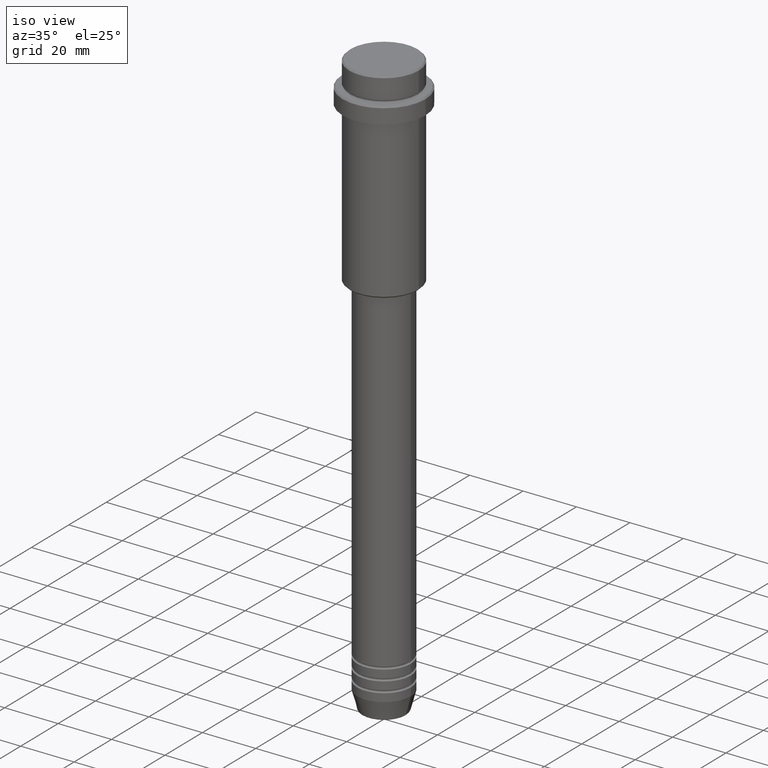
[diagram: clean part render]
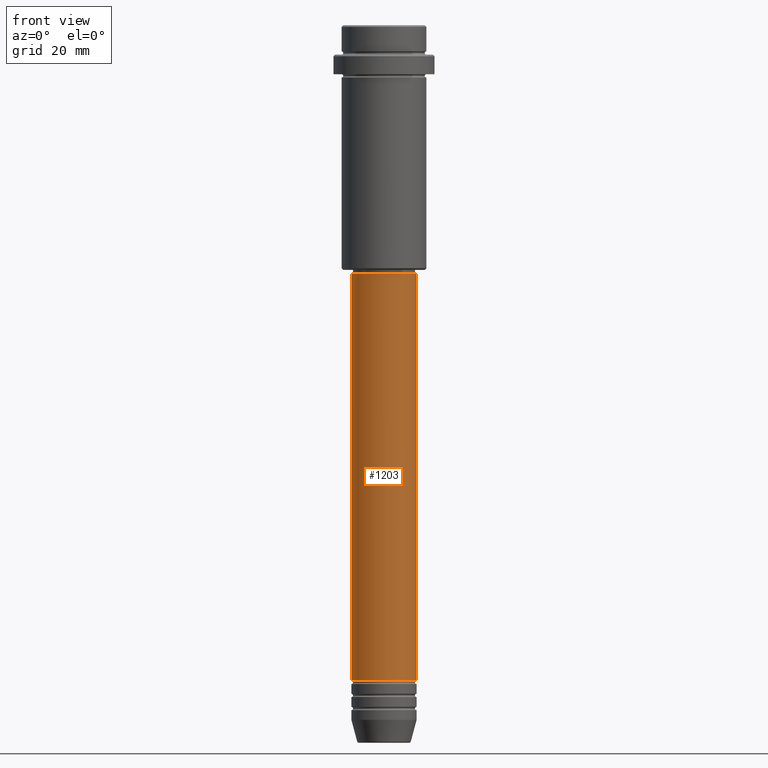
[diagram: tour spotlight — one face highlighted and labeled with its STEP entity id]
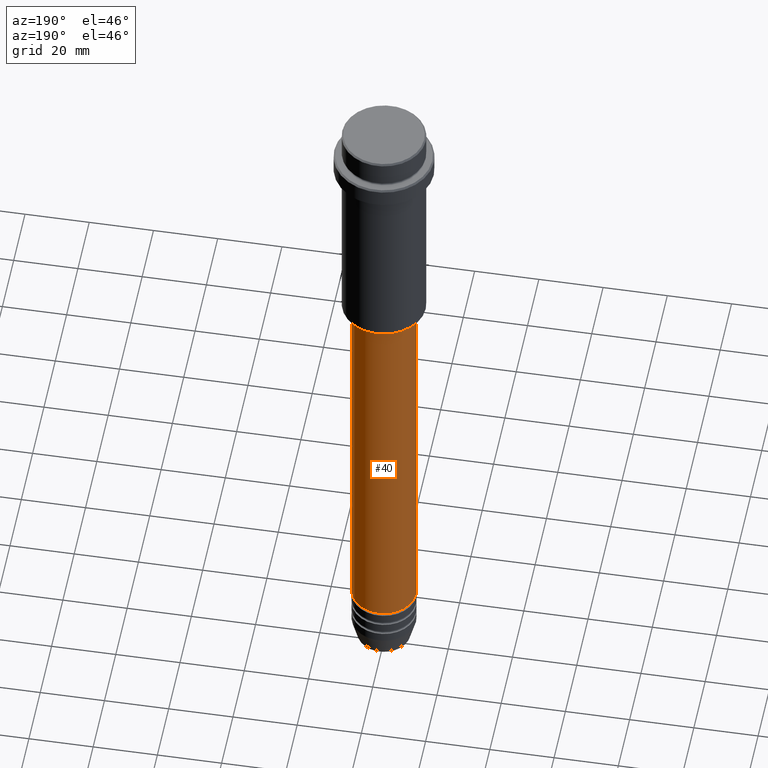
[diagram: tour spotlight — one face highlighted and labeled with its STEP entity id]
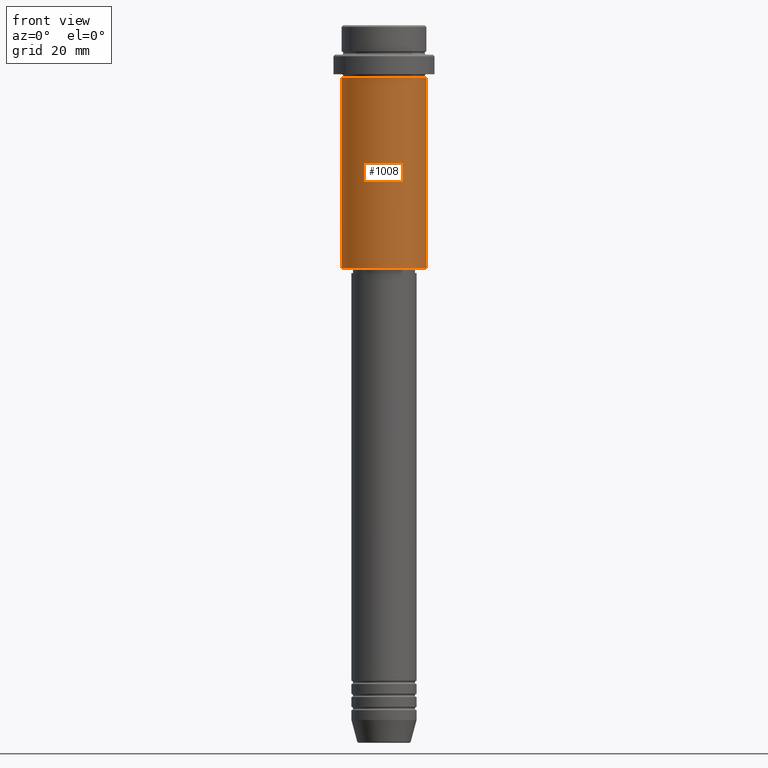
[diagram: tour spotlight — one face highlighted and labeled with its STEP entity id]
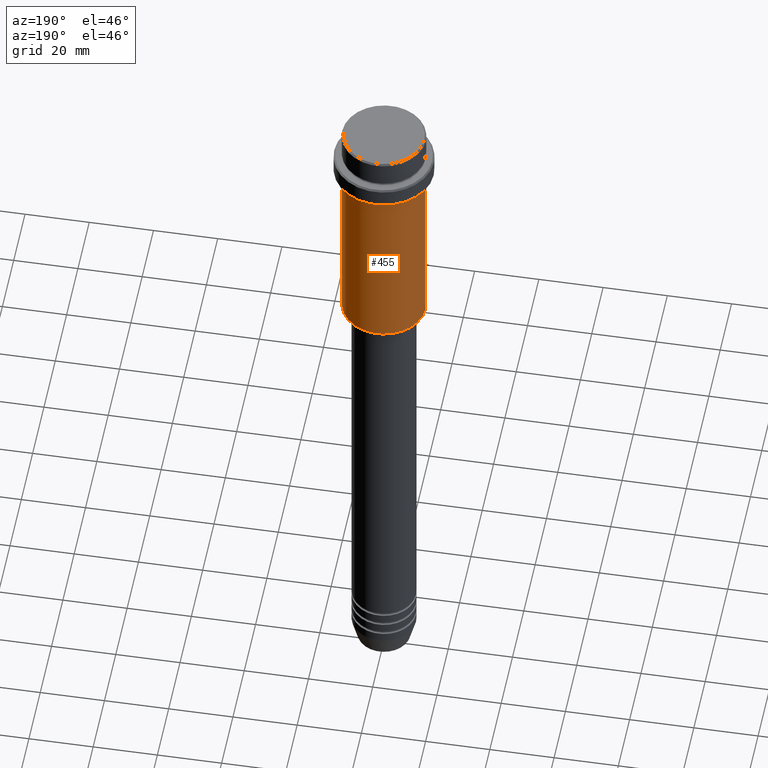
[diagram: tour spotlight — one face highlighted and labeled with its STEP entity id]
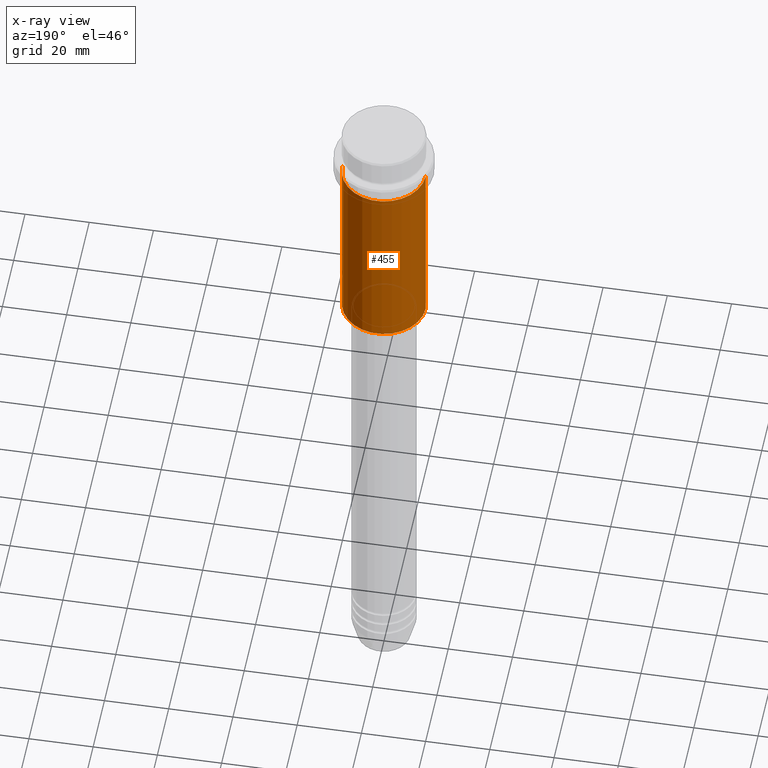
[diagram: x-ray of the same camera — body ghosted, this tour face saturated]
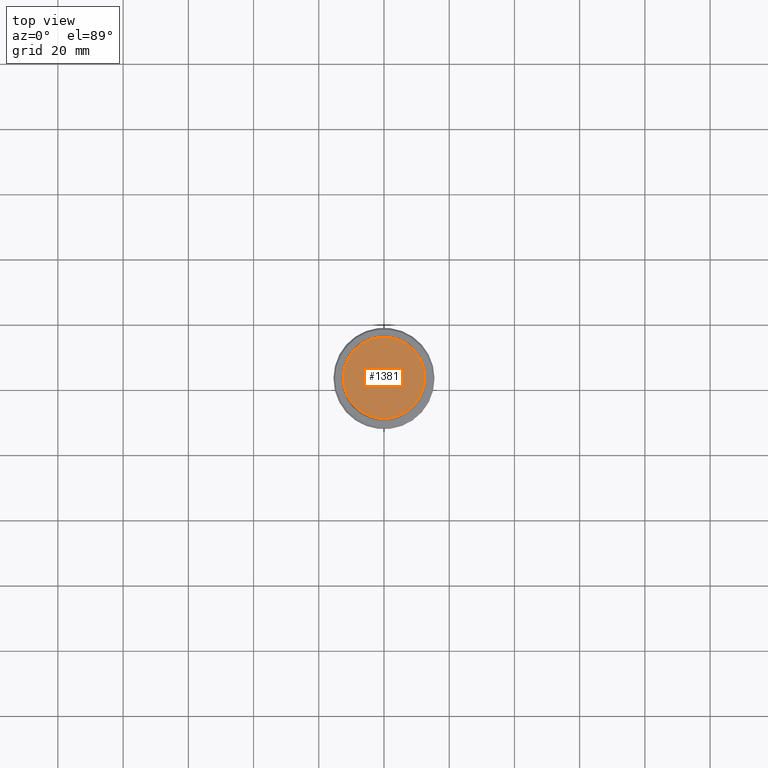
[diagram: tour spotlight — one face highlighted and labeled with its STEP entity id]
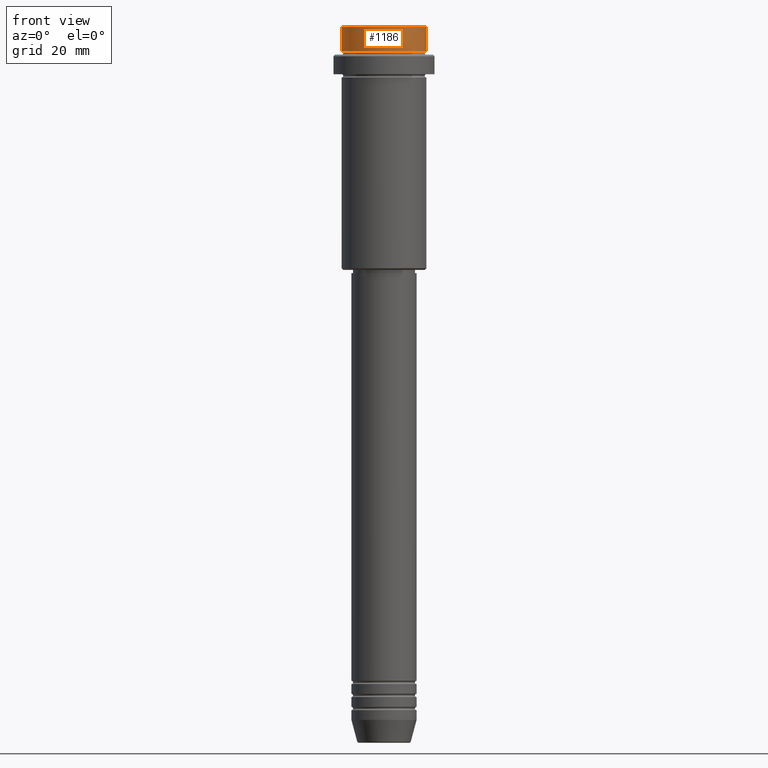
[diagram: tour spotlight — one face highlighted and labeled with its STEP entity id]
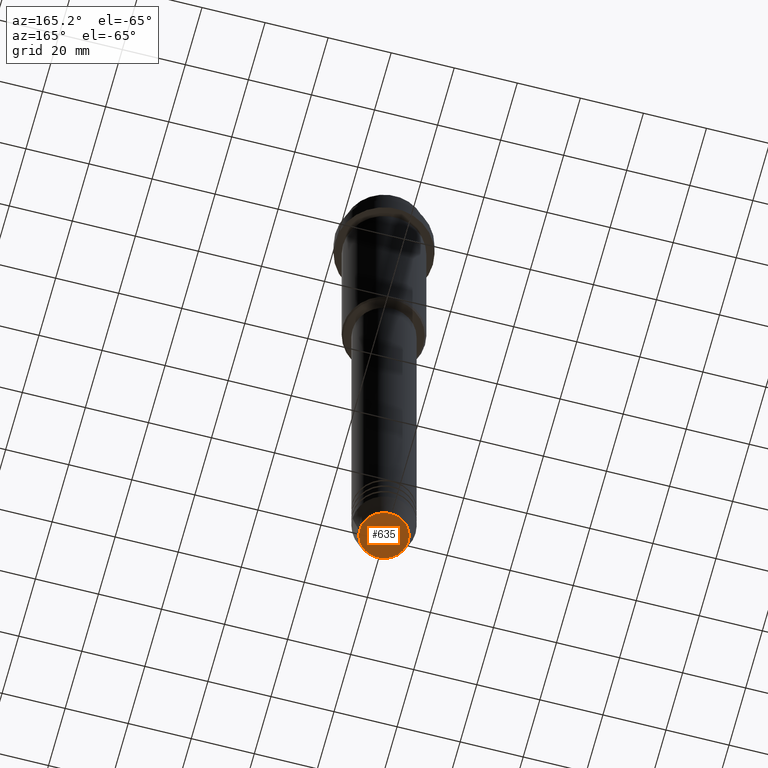
[diagram: tour spotlight — one face highlighted and labeled with its STEP entity id]
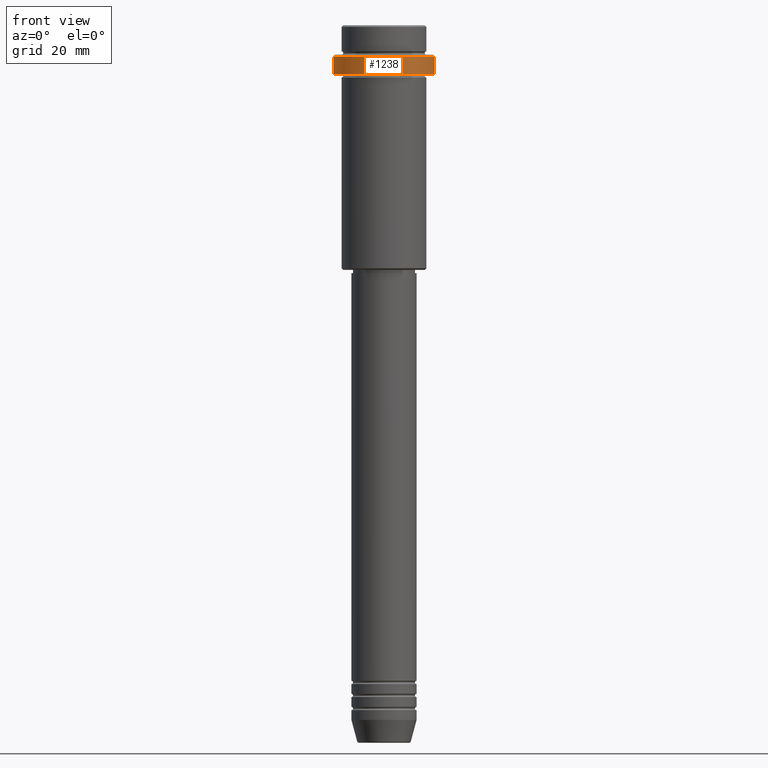
[diagram: tour spotlight — one face highlighted and labeled with its STEP entity id]
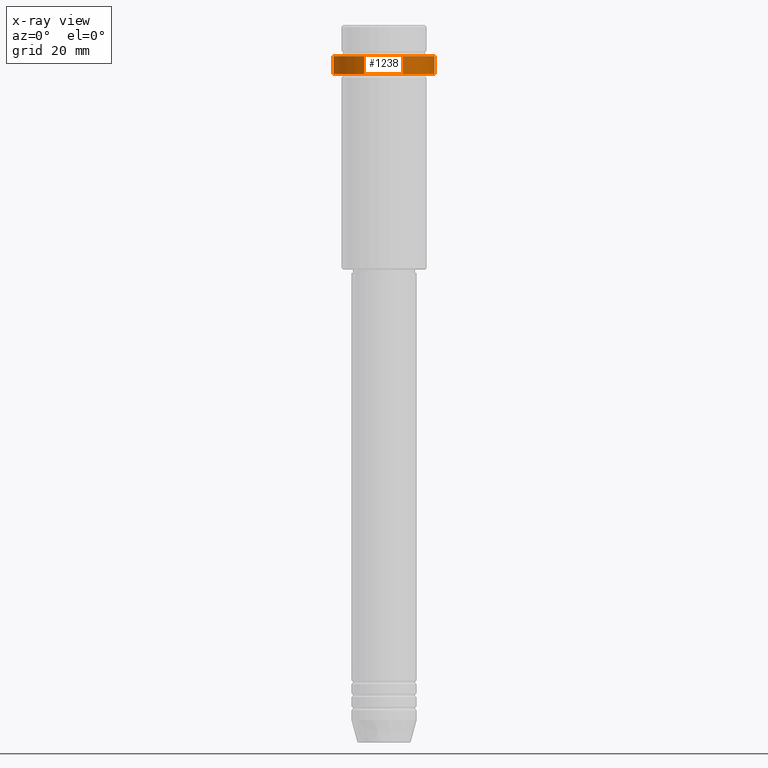
[diagram: x-ray of the same camera — body ghosted, this tour face saturated]
A machine part: a face-by-face anatomy tour. The part has 52 B-rep faces; the first image is the clean iso view, then the 8 largest visible faces are spotlighted one at a time (largest first), each with its STEP entity span.

Face 1 — front view, entity #1203. In plain terms, the highlighted cylindrical surface (edge-blend (fillet) strip) has radius 10 mm, axis along (-0, -0, 1).
Definition (entity closure, byte-faithful):
#1 = VERTEX_POINT ( 'NONE', #1125 ) ;
#70 = EDGE_CURVE ( 'NONE', #1123, #1194, #781, .T. ) ;
#89 = ORIENTED_EDGE ( 'NONE', *, *, #380, .F. ) ;
#114 = CARTESIAN_POINT ( 'NONE',  ( -10.00000000000000178, 1.224646799147353454E-15, 0.000000000000000000 ) ) ;
#206 = CARTESIAN_POINT ( 'NONE',  ( -10.00000000000000000, 1.224646799147353256E-15, -200.9999999999998579 ) ) ;
#218 = DIRECTION ( 'NONE',  ( -0.000000000000000000, -0.000000000000000000, 1.000000000000000000 ) ) ;
#263 = ORIENTED_EDGE ( 'NONE', *, *, #705, .T. ) ;
#276 = CARTESIAN_POINT ( 'NONE',  ( 0.000000000000000000, 0.000000000000000000, 0.000000000000000000 ) ) ;
#292 = LINE ( 'NONE', #114, #372 ) ;
#334 = CIRCLE ( 'NONE', #1176, 10.00000000000000178 ) ;
#339 = ORIENTED_EDGE ( 'NONE', *, *, #70, .T. ) ;
#372 = VECTOR ( 'NONE', #785, 1000.000000000000000 ) ;
#380 = EDGE_CURVE ( 'NONE', #1123, #1, #292, .T. ) ;
#422 = AXIS2_PLACEMENT_3D ( 'NONE', #276, #1293, #731 ) ;
#426 = DIRECTION ( 'NONE',  ( 1.000000000000000000, 0.000000000000000000, 0.000000000000000000 ) ) ;
#433 = VERTEX_POINT ( 'NONE', #523 ) ;
#523 = CARTESIAN_POINT ( 'NONE',  ( 10.00000000000000178, 0.000000000000000000, -75.99999999999998579 ) ) ;
#563 = AXIS2_PLACEMENT_3D ( 'NONE', #1124, #1307, #1205 ) ;
#705 = EDGE_CURVE ( 'NONE', #1194, #433, #976, .T. ) ;
#731 = DIRECTION ( 'NONE',  ( 1.000000000000000000, 0.000000000000000000, 0.000000000000000000 ) ) ;
#781 = CIRCLE ( 'NONE', #563, 10.00000000000000000 ) ;
#785 = DIRECTION ( 'NONE',  ( -0.000000000000000000, -0.000000000000000000, 1.000000000000000000 ) ) ;
#844 = FACE_OUTER_BOUND ( 'NONE', #1030, .T. ) ;
#927 = VECTOR ( 'NONE', #1376, 1000.000000000000000 ) ;
#976 = LINE ( 'NONE', #1277, #927 ) ;
#1030 = EDGE_LOOP ( 'NONE', ( #89, #339, #263, #1385 ) ) ;
#1123 = VERTEX_POINT ( 'NONE', #206 ) ;
#1124 = CARTESIAN_POINT ( 'NONE',  ( 0.000000000000000000, 0.000000000000000000, -200.9999999999998579 ) ) ;
#1125 = CARTESIAN_POINT ( 'NONE',  ( -10.00000000000000178, 1.224646799147353454E-15, -75.99999999999998579 ) ) ;
#1176 = AXIS2_PLACEMENT_3D ( 'NONE', #1206, #218, #426 ) ;
#1187 = CYLINDRICAL_SURFACE ( 'NONE', #422, 10.00000000000000178 ) ;
#1194 = VERTEX_POINT ( 'NONE', #1288 ) ;
#1203 = ADVANCED_FACE ( 'NONE', ( #844 ), #1187, .T. ) ;
#1205 = DIRECTION ( 'NONE',  ( 1.000000000000000000, 0.000000000000000000, 0.000000000000000000 ) ) ;
#1206 = CARTESIAN_POINT ( 'NONE',  ( 0.000000000000000000, 0.000000000000000000, -75.99999999999998579 ) ) ;
#1245 = EDGE_CURVE ( 'NONE', #1, #433, #334, .T. ) ;
#1277 = CARTESIAN_POINT ( 'NONE',  ( 10.00000000000000178, 0.000000000000000000, 0.000000000000000000 ) ) ;
#1288 = CARTESIAN_POINT ( 'NONE',  ( 10.00000000000000000, 0.000000000000000000, -200.9999999999998579 ) ) ;
#1293 = DIRECTION ( 'NONE',  ( -0.000000000000000000, -0.000000000000000000, 1.000000000000000000 ) ) ;
#1307 = DIRECTION ( 'NONE',  ( -0.000000000000000000, -0.000000000000000000, 1.000000000000000000 ) ) ;
#1376 = DIRECTION ( 'NONE',  ( -0.000000000000000000, -0.000000000000000000, 1.000000000000000000 ) ) ;
#1385 = ORIENTED_EDGE ( 'NONE', *, *, #1245, .F. ) ;

Face 2 — auxiliary view, entity #40. In plain terms, the highlighted cylindrical surface (edge-blend (fillet) strip) has radius 10 mm, axis along (-0, -0, 1).
Definition (entity closure, byte-faithful):
#1 = VERTEX_POINT ( 'NONE', #1125 ) ;
#5 = ORIENTED_EDGE ( 'NONE', *, *, #380, .T. ) ;
#35 = CARTESIAN_POINT ( 'NONE',  ( 0.000000000000000000, 0.000000000000000000, 0.000000000000000000 ) ) ;
#40 = ADVANCED_FACE ( 'NONE', ( #246 ), #939, .T. ) ;
#93 = ORIENTED_EDGE ( 'NONE', *, *, #705, .F. ) ;
#114 = CARTESIAN_POINT ( 'NONE',  ( -10.00000000000000178, 1.224646799147353454E-15, 0.000000000000000000 ) ) ;
#206 = CARTESIAN_POINT ( 'NONE',  ( -10.00000000000000000, 1.224646799147353256E-15, -200.9999999999998579 ) ) ;
#239 = CIRCLE ( 'NONE', #612, 10.00000000000000000 ) ;
#246 = FACE_OUTER_BOUND ( 'NONE', #495, .T. ) ;
#271 = ORIENTED_EDGE ( 'NONE', *, *, #868, .T. ) ;
#292 = LINE ( 'NONE', #114, #372 ) ;
#335 = ORIENTED_EDGE ( 'NONE', *, *, #1089, .F. ) ;
#372 = VECTOR ( 'NONE', #785, 1000.000000000000000 ) ;
#380 = EDGE_CURVE ( 'NONE', #1123, #1, #292, .T. ) ;
#433 = VERTEX_POINT ( 'NONE', #523 ) ;
#495 = EDGE_LOOP ( 'NONE', ( #271, #5, #335, #93 ) ) ;
#523 = CARTESIAN_POINT ( 'NONE',  ( 10.00000000000000178, 0.000000000000000000, -75.99999999999998579 ) ) ;
#589 = DIRECTION ( 'NONE',  ( -0.000000000000000000, -0.000000000000000000, 1.000000000000000000 ) ) ;
#612 = AXIS2_PLACEMENT_3D ( 'NONE', #1021, #1101, #989 ) ;
#699 = CARTESIAN_POINT ( 'NONE',  ( 0.000000000000000000, 0.000000000000000000, -75.99999999999998579 ) ) ;
#705 = EDGE_CURVE ( 'NONE', #1194, #433, #976, .T. ) ;
#734 = AXIS2_PLACEMENT_3D ( 'NONE', #699, #1148, #824 ) ;
#785 = DIRECTION ( 'NONE',  ( -0.000000000000000000, -0.000000000000000000, 1.000000000000000000 ) ) ;
#824 = DIRECTION ( 'NONE',  ( 1.000000000000000000, 0.000000000000000000, 0.000000000000000000 ) ) ;
#831 = CIRCLE ( 'NONE', #734, 10.00000000000000178 ) ;
#868 = EDGE_CURVE ( 'NONE', #1194, #1123, #239, .T. ) ;
#927 = VECTOR ( 'NONE', #1376, 1000.000000000000000 ) ;
#939 = CYLINDRICAL_SURFACE ( 'NONE', #1060, 10.00000000000000178 ) ;
#976 = LINE ( 'NONE', #1277, #927 ) ;
#989 = DIRECTION ( 'NONE',  ( 1.000000000000000000, 0.000000000000000000, 0.000000000000000000 ) ) ;
#1021 = CARTESIAN_POINT ( 'NONE',  ( 0.000000000000000000, 0.000000000000000000, -200.9999999999998579 ) ) ;
#1060 = AXIS2_PLACEMENT_3D ( 'NONE', #35, #589, #1155 ) ;
#1089 = EDGE_CURVE ( 'NONE', #433, #1, #831, .T. ) ;
#1101 = DIRECTION ( 'NONE',  ( -0.000000000000000000, -0.000000000000000000, 1.000000000000000000 ) ) ;
#1123 = VERTEX_POINT ( 'NONE', #206 ) ;
#1125 = CARTESIAN_POINT ( 'NONE',  ( -10.00000000000000178, 1.224646799147353454E-15, -75.99999999999998579 ) ) ;
#1148 = DIRECTION ( 'NONE',  ( -0.000000000000000000, -0.000000000000000000, 1.000000000000000000 ) ) ;
#1155 = DIRECTION ( 'NONE',  ( 1.000000000000000000, 0.000000000000000000, 0.000000000000000000 ) ) ;
#1194 = VERTEX_POINT ( 'NONE', #1288 ) ;
#1277 = CARTESIAN_POINT ( 'NONE',  ( 10.00000000000000178, 0.000000000000000000, 0.000000000000000000 ) ) ;
#1288 = CARTESIAN_POINT ( 'NONE',  ( 10.00000000000000000, 0.000000000000000000, -200.9999999999998579 ) ) ;
#1376 = DIRECTION ( 'NONE',  ( -0.000000000000000000, -0.000000000000000000, 1.000000000000000000 ) ) ;

Face 3 — front view, entity #1008. In plain terms, the highlighted cylindrical surface (partial cylindrical patch) has radius 13 mm, axis along (-0, -0, 1).
Definition (entity closure, byte-faithful):
#24 = DIRECTION ( 'NONE',  ( 1.000000000000000000, 0.000000000000000000, 0.000000000000000000 ) ) ;
#51 = DIRECTION ( 'NONE',  ( 1.000000000000000000, 0.000000000000000000, 0.000000000000000000 ) ) ;
#157 = EDGE_CURVE ( 'NONE', #568, #526, #1297, .T. ) ;
#325 = ORIENTED_EDGE ( 'NONE', *, *, #157, .T. ) ;
#341 = CARTESIAN_POINT ( 'NONE',  ( -13.00000000000000000, 1.592040838891559095E-15, -16.00000000000000000 ) ) ;
#343 = CARTESIAN_POINT ( 'NONE',  ( 0.000000000000000000, 0.000000000000000000, -16.00000000000000000 ) ) ;
#354 = AXIS2_PLACEMENT_3D ( 'NONE', #573, #1231, #918 ) ;
#420 = AXIS2_PLACEMENT_3D ( 'NONE', #461, #1157, #51 ) ;
#461 = CARTESIAN_POINT ( 'NONE',  ( 0.000000000000000000, 0.000000000000000000, 0.000000000000000000 ) ) ;
#479 = EDGE_CURVE ( 'NONE', #526, #743, #1379, .T. ) ;
#485 = CARTESIAN_POINT ( 'NONE',  ( 13.00000000000000000, 0.000000000000000000, -74.50000000000001421 ) ) ;
#491 = VECTOR ( 'NONE', #648, 1000.000000000000000 ) ;
#505 = CARTESIAN_POINT ( 'NONE',  ( -13.00000000000000000, 1.592040838891559095E-15, -74.50000000000001421 ) ) ;
#524 = VERTEX_POINT ( 'NONE', #341 ) ;
#526 = VERTEX_POINT ( 'NONE', #485 ) ;
#536 = DIRECTION ( 'NONE',  ( -0.000000000000000000, -0.000000000000000000, 1.000000000000000000 ) ) ;
#568 = VERTEX_POINT ( 'NONE', #505 ) ;
#573 = CARTESIAN_POINT ( 'NONE',  ( 0.000000000000000000, 0.000000000000000000, -74.50000000000001421 ) ) ;
#640 = CIRCLE ( 'NONE', #1134, 13.00000000000000000 ) ;
#648 = DIRECTION ( 'NONE',  ( -0.000000000000000000, -0.000000000000000000, 1.000000000000000000 ) ) ;
#685 = ORIENTED_EDGE ( 'NONE', *, *, #1300, .F. ) ;
#709 = ORIENTED_EDGE ( 'NONE', *, *, #479, .T. ) ;
#743 = VERTEX_POINT ( 'NONE', #1165 ) ;
#745 = LINE ( 'NONE', #1200, #491 ) ;
#793 = CARTESIAN_POINT ( 'NONE',  ( 13.00000000000000000, 0.000000000000000000, 0.000000000000000000 ) ) ;
#805 = DIRECTION ( 'NONE',  ( -0.000000000000000000, -0.000000000000000000, 1.000000000000000000 ) ) ;
#918 = DIRECTION ( 'NONE',  ( -1.000000000000000000, 0.000000000000000000, 0.000000000000000000 ) ) ;
#1008 = ADVANCED_FACE ( 'NONE', ( #1057 ), #1049, .T. ) ;
#1022 = EDGE_LOOP ( 'NONE', ( #1043, #325, #709, #685 ) ) ;
#1043 = ORIENTED_EDGE ( 'NONE', *, *, #1195, .F. ) ;
#1049 = CYLINDRICAL_SURFACE ( 'NONE', #420, 13.00000000000000000 ) ;
#1057 = FACE_OUTER_BOUND ( 'NONE', #1022, .T. ) ;
#1134 = AXIS2_PLACEMENT_3D ( 'NONE', #343, #536, #24 ) ;
#1157 = DIRECTION ( 'NONE',  ( -0.000000000000000000, -0.000000000000000000, 1.000000000000000000 ) ) ;
#1165 = CARTESIAN_POINT ( 'NONE',  ( 13.00000000000000000, 0.000000000000000000, -16.00000000000000000 ) ) ;
#1195 = EDGE_CURVE ( 'NONE', #568, #524, #745, .T. ) ;
#1200 = CARTESIAN_POINT ( 'NONE',  ( -13.00000000000000000, 1.592040838891559095E-15, 0.000000000000000000 ) ) ;
#1231 = DIRECTION ( 'NONE',  ( -0.000000000000000000, -0.000000000000000000, 1.000000000000000000 ) ) ;
#1297 = CIRCLE ( 'NONE', #354, 13.00000000000000000 ) ;
#1300 = EDGE_CURVE ( 'NONE', #524, #743, #640, .T. ) ;
#1319 = VECTOR ( 'NONE', #805, 1000.000000000000000 ) ;
#1379 = LINE ( 'NONE', #793, #1319 ) ;

Face 4 — auxiliary view, entity #455. An x-ray twin of the same camera follows (body ghosted, this face saturated) — the face is partly hidden behind the body. In plain terms, the highlighted cylindrical surface (partial cylindrical patch) has radius 13 mm, axis along (-0, -0, 1).
Definition (entity closure, byte-faithful):
#47 = DIRECTION ( 'NONE',  ( 1.000000000000000000, 0.000000000000000000, 0.000000000000000000 ) ) ;
#146 = CARTESIAN_POINT ( 'NONE',  ( 0.000000000000000000, 0.000000000000000000, 0.000000000000000000 ) ) ;
#158 = DIRECTION ( 'NONE',  ( -0.000000000000000000, -0.000000000000000000, 1.000000000000000000 ) ) ;
#179 = DIRECTION ( 'NONE',  ( -0.000000000000000000, -0.000000000000000000, 1.000000000000000000 ) ) ;
#300 = ORIENTED_EDGE ( 'NONE', *, *, #345, .F. ) ;
#323 = CARTESIAN_POINT ( 'NONE',  ( 0.000000000000000000, 0.000000000000000000, -16.00000000000000000 ) ) ;
#341 = CARTESIAN_POINT ( 'NONE',  ( -13.00000000000000000, 1.592040838891559095E-15, -16.00000000000000000 ) ) ;
#345 = EDGE_CURVE ( 'NONE', #743, #524, #1112, .T. ) ;
#455 = ADVANCED_FACE ( 'NONE', ( #649 ), #1248, .T. ) ;
#479 = EDGE_CURVE ( 'NONE', #526, #743, #1379, .T. ) ;
#485 = CARTESIAN_POINT ( 'NONE',  ( 13.00000000000000000, 0.000000000000000000, -74.50000000000001421 ) ) ;
#488 = CIRCLE ( 'NONE', #683, 13.00000000000000000 ) ;
#491 = VECTOR ( 'NONE', #648, 1000.000000000000000 ) ;
#505 = CARTESIAN_POINT ( 'NONE',  ( -13.00000000000000000, 1.592040838891559095E-15, -74.50000000000001421 ) ) ;
#524 = VERTEX_POINT ( 'NONE', #341 ) ;
#526 = VERTEX_POINT ( 'NONE', #485 ) ;
#568 = VERTEX_POINT ( 'NONE', #505 ) ;
#648 = DIRECTION ( 'NONE',  ( -0.000000000000000000, -0.000000000000000000, 1.000000000000000000 ) ) ;
#649 = FACE_OUTER_BOUND ( 'NONE', #845, .T. ) ;
#670 = ORIENTED_EDGE ( 'NONE', *, *, #792, .T. ) ;
#683 = AXIS2_PLACEMENT_3D ( 'NONE', #1408, #1234, #1135 ) ;
#743 = VERTEX_POINT ( 'NONE', #1165 ) ;
#745 = LINE ( 'NONE', #1200, #491 ) ;
#792 = EDGE_CURVE ( 'NONE', #526, #568, #488, .T. ) ;
#793 = CARTESIAN_POINT ( 'NONE',  ( 13.00000000000000000, 0.000000000000000000, 0.000000000000000000 ) ) ;
#805 = DIRECTION ( 'NONE',  ( -0.000000000000000000, -0.000000000000000000, 1.000000000000000000 ) ) ;
#828 = AXIS2_PLACEMENT_3D ( 'NONE', #323, #179, #1073 ) ;
#845 = EDGE_LOOP ( 'NONE', ( #670, #966, #300, #931 ) ) ;
#931 = ORIENTED_EDGE ( 'NONE', *, *, #479, .F. ) ;
#966 = ORIENTED_EDGE ( 'NONE', *, *, #1195, .T. ) ;
#970 = AXIS2_PLACEMENT_3D ( 'NONE', #146, #158, #47 ) ;
#1073 = DIRECTION ( 'NONE',  ( 1.000000000000000000, 0.000000000000000000, 0.000000000000000000 ) ) ;
#1112 = CIRCLE ( 'NONE', #828, 13.00000000000000000 ) ;
#1135 = DIRECTION ( 'NONE',  ( -1.000000000000000000, 0.000000000000000000, 0.000000000000000000 ) ) ;
#1165 = CARTESIAN_POINT ( 'NONE',  ( 13.00000000000000000, 0.000000000000000000, -16.00000000000000000 ) ) ;
#1195 = EDGE_CURVE ( 'NONE', #568, #524, #745, .T. ) ;
#1200 = CARTESIAN_POINT ( 'NONE',  ( -13.00000000000000000, 1.592040838891559095E-15, 0.000000000000000000 ) ) ;
#1234 = DIRECTION ( 'NONE',  ( -0.000000000000000000, -0.000000000000000000, 1.000000000000000000 ) ) ;
#1248 = CYLINDRICAL_SURFACE ( 'NONE', #970, 13.00000000000000000 ) ;
#1319 = VECTOR ( 'NONE', #805, 1000.000000000000000 ) ;
#1379 = LINE ( 'NONE', #793, #1319 ) ;
#1408 = CARTESIAN_POINT ( 'NONE',  ( 0.000000000000000000, 0.000000000000000000, -74.50000000000001421 ) ) ;

Face 5 — top view, entity #1381. In plain terms, the highlighted planar face has unit normal (0, -0, 1).
Definition (entity closure, byte-faithful):
#107 = DIRECTION ( 'NONE',  ( 0.000000000000000000, -0.000000000000000000, 1.000000000000000000 ) ) ;
#118 = EDGE_CURVE ( 'NONE', #1142, #1251, #1387, .T. ) ;
#124 = DIRECTION ( 'NONE',  ( 1.000000000000000000, 0.000000000000000000, 0.000000000000000000 ) ) ;
#134 = AXIS2_PLACEMENT_3D ( 'NONE', #897, #107, #331 ) ;
#331 = DIRECTION ( 'NONE',  ( 1.000000000000000000, 0.000000000000000000, 0.000000000000000000 ) ) ;
#432 = FACE_OUTER_BOUND ( 'NONE', #1108, .T. ) ;
#448 = ORIENTED_EDGE ( 'NONE', *, *, #471, .T. ) ;
#471 = EDGE_CURVE ( 'NONE', #1251, #1142, #758, .T. ) ;
#512 = AXIS2_PLACEMENT_3D ( 'NONE', #761, #1223, #124 ) ;
#653 = CARTESIAN_POINT ( 'NONE',  ( 0.000000000000000000, 0.000000000000000000, 0.000000000000000000 ) ) ;
#655 = PLANE ( 'NONE',  #134 ) ;
#752 = CARTESIAN_POINT ( 'NONE',  ( 12.50000000000001243, 1.561424668912876097E-15, 0.000000000000000000 ) ) ;
#758 = CIRCLE ( 'NONE', #512, 12.50000000000001243 ) ;
#761 = CARTESIAN_POINT ( 'NONE',  ( 0.000000000000000000, 0.000000000000000000, 0.000000000000000000 ) ) ;
#803 = ORIENTED_EDGE ( 'NONE', *, *, #118, .T. ) ;
#897 = CARTESIAN_POINT ( 'NONE',  ( 0.000000000000000000, 0.000000000000000000, 0.000000000000000000 ) ) ;
#943 = AXIS2_PLACEMENT_3D ( 'NONE', #653, #1399, #1313 ) ;
#1108 = EDGE_LOOP ( 'NONE', ( #448, #803 ) ) ;
#1122 = CARTESIAN_POINT ( 'NONE',  ( -12.50000000000001243, 0.000000000000000000, 0.000000000000000000 ) ) ;
#1142 = VERTEX_POINT ( 'NONE', #752 ) ;
#1223 = DIRECTION ( 'NONE',  ( -0.000000000000000000, -0.000000000000000000, 1.000000000000000000 ) ) ;
#1251 = VERTEX_POINT ( 'NONE', #1122 ) ;
#1313 = DIRECTION ( 'NONE',  ( 1.000000000000000000, 0.000000000000000000, 0.000000000000000000 ) ) ;
#1381 = ADVANCED_FACE ( 'NONE', ( #432 ), #655, .T. ) ;
#1387 = CIRCLE ( 'NONE', #943, 12.50000000000001243 ) ;
#1399 = DIRECTION ( 'NONE',  ( -0.000000000000000000, -0.000000000000000000, 1.000000000000000000 ) ) ;

Face 6 — front view, entity #1186. In plain terms, the highlighted cylindrical surface (partial cylindrical patch) has radius 13 mm, axis along (-0, -0, 1).
Definition (entity closure, byte-faithful):
#57 = CARTESIAN_POINT ( 'NONE',  ( 0.000000000000000000, 0.000000000000000000, -0.4999999999999761302 ) ) ;
#116 = EDGE_CURVE ( 'NONE', #427, #314, #978, .T. ) ;
#128 = VECTOR ( 'NONE', #409, 1000.000000000000000 ) ;
#261 = DIRECTION ( 'NONE',  ( -0.000000000000000000, -0.000000000000000000, 1.000000000000000000 ) ) ;
#291 = EDGE_LOOP ( 'NONE', ( #480, #572, #1182, #1285 ) ) ;
#297 = LINE ( 'NONE', #1197, #710 ) ;
#314 = VERTEX_POINT ( 'NONE', #740 ) ;
#333 = CIRCLE ( 'NONE', #903, 12.99999999999999822 ) ;
#340 = CARTESIAN_POINT ( 'NONE',  ( -12.99999999999999822, 1.592040838891558898E-15, -0.4999999999999761302 ) ) ;
#409 = DIRECTION ( 'NONE',  ( -0.000000000000000000, -0.000000000000000000, 1.000000000000000000 ) ) ;
#410 = DIRECTION ( 'NONE',  ( 1.000000000000000000, 0.000000000000000000, 0.000000000000000000 ) ) ;
#427 = VERTEX_POINT ( 'NONE', #864 ) ;
#480 = ORIENTED_EDGE ( 'NONE', *, *, #827, .F. ) ;
#483 = DIRECTION ( 'NONE',  ( 0.000000000000000000, 0.000000000000000000, -1.000000000000000000 ) ) ;
#509 = FACE_OUTER_BOUND ( 'NONE', #291, .T. ) ;
#514 = DIRECTION ( 'NONE',  ( 1.000000000000000000, 0.000000000000000000, 0.000000000000000000 ) ) ;
#521 = CYLINDRICAL_SURFACE ( 'NONE', #1364, 12.99999999999999822 ) ;
#572 = ORIENTED_EDGE ( 'NONE', *, *, #698, .T. ) ;
#660 = AXIS2_PLACEMENT_3D ( 'NONE', #1386, #261, #514 ) ;
#698 = EDGE_CURVE ( 'NONE', #1102, #427, #1237, .T. ) ;
#710 = VECTOR ( 'NONE', #767, 1000.000000000000000 ) ;
#740 = CARTESIAN_POINT ( 'NONE',  ( 12.99999999999999822, 0.000000000000000000, -0.4999999999999761302 ) ) ;
#767 = DIRECTION ( 'NONE',  ( -0.000000000000000000, -0.000000000000000000, 1.000000000000000000 ) ) ;
#827 = EDGE_CURVE ( 'NONE', #1102, #898, #297, .T. ) ;
#864 = CARTESIAN_POINT ( 'NONE',  ( 12.99999999999999822, 0.000000000000000000, -7.999999999999998224 ) ) ;
#898 = VERTEX_POINT ( 'NONE', #340 ) ;
#903 = AXIS2_PLACEMENT_3D ( 'NONE', #57, #483, #1257 ) ;
#969 = CARTESIAN_POINT ( 'NONE',  ( 0.000000000000000000, 0.000000000000000000, 0.000000000000000000 ) ) ;
#978 = LINE ( 'NONE', #1404, #128 ) ;
#987 = DIRECTION ( 'NONE',  ( -0.000000000000000000, -0.000000000000000000, 1.000000000000000000 ) ) ;
#1027 = EDGE_CURVE ( 'NONE', #314, #898, #333, .T. ) ;
#1074 = CARTESIAN_POINT ( 'NONE',  ( -12.99999999999999822, 1.592040838891558898E-15, -7.999999999999998224 ) ) ;
#1102 = VERTEX_POINT ( 'NONE', #1074 ) ;
#1182 = ORIENTED_EDGE ( 'NONE', *, *, #116, .T. ) ;
#1186 = ADVANCED_FACE ( 'NONE', ( #509 ), #521, .T. ) ;
#1197 = CARTESIAN_POINT ( 'NONE',  ( -12.99999999999999822, 1.592040838891558898E-15, 0.000000000000000000 ) ) ;
#1237 = CIRCLE ( 'NONE', #660, 12.99999999999999822 ) ;
#1257 = DIRECTION ( 'NONE',  ( 1.000000000000000000, 0.000000000000000000, 0.000000000000000000 ) ) ;
#1285 = ORIENTED_EDGE ( 'NONE', *, *, #1027, .T. ) ;
#1364 = AXIS2_PLACEMENT_3D ( 'NONE', #969, #987, #410 ) ;
#1386 = CARTESIAN_POINT ( 'NONE',  ( 0.000000000000000000, 0.000000000000000000, -7.999999999999998224 ) ) ;
#1404 = CARTESIAN_POINT ( 'NONE',  ( 12.99999999999999822, 0.000000000000000000, 0.000000000000000000 ) ) ;

Face 7 — auxiliary view, entity #635. In plain terms, the highlighted planar face has unit normal (0, -0, 1).
Definition (entity closure, byte-faithful):
#13 = DIRECTION ( 'NONE',  ( 0.000000000000000000, 0.000000000000000000, -1.000000000000000000 ) ) ;
#18 = ORIENTED_EDGE ( 'NONE', *, *, #178, .T. ) ;
#106 = CIRCLE ( 'NONE', #679, 7.740692158992656502 ) ;
#140 = CARTESIAN_POINT ( 'NONE',  ( -7.740692158992656502, 9.775343368540041107E-16, -219.9999999999999716 ) ) ;
#178 = EDGE_CURVE ( 'NONE', #444, #193, #732, .T. ) ;
#193 = VERTEX_POINT ( 'NONE', #140 ) ;
#212 = EDGE_CURVE ( 'NONE', #193, #444, #106, .T. ) ;
#352 = DIRECTION ( 'NONE',  ( 0.000000000000000000, 0.000000000000000000, -1.000000000000000000 ) ) ;
#428 = DIRECTION ( 'NONE',  ( 0.000000000000000000, -0.000000000000000000, 1.000000000000000000 ) ) ;
#436 = DIRECTION ( 'NONE',  ( 1.000000000000000000, 0.000000000000000000, 0.000000000000000000 ) ) ;
#444 = VERTEX_POINT ( 'NONE', #1201 ) ;
#454 = PLANE ( 'NONE',  #1015 ) ;
#558 = CARTESIAN_POINT ( 'NONE',  ( 0.000000000000000000, 0.000000000000000000, -219.9999999999999716 ) ) ;
#635 = ADVANCED_FACE ( 'NONE', ( #688 ), #454, .F. ) ;
#642 = DIRECTION ( 'NONE',  ( 1.000000000000000000, 0.000000000000000000, 0.000000000000000000 ) ) ;
#656 = ORIENTED_EDGE ( 'NONE', *, *, #212, .T. ) ;
#679 = AXIS2_PLACEMENT_3D ( 'NONE', #558, #13, #436 ) ;
#688 = FACE_OUTER_BOUND ( 'NONE', #1306, .T. ) ;
#732 = CIRCLE ( 'NONE', #1170, 7.740692158992656502 ) ;
#1015 = AXIS2_PLACEMENT_3D ( 'NONE', #1341, #428, #642 ) ;
#1121 = DIRECTION ( 'NONE',  ( 1.000000000000000000, 0.000000000000000000, 0.000000000000000000 ) ) ;
#1170 = AXIS2_PLACEMENT_3D ( 'NONE', #1336, #352, #1121 ) ;
#1201 = CARTESIAN_POINT ( 'NONE',  ( 7.740692158992656502, 0.000000000000000000, -219.9999999999999716 ) ) ;
#1306 = EDGE_LOOP ( 'NONE', ( #18, #656 ) ) ;
#1336 = CARTESIAN_POINT ( 'NONE',  ( 0.000000000000000000, 0.000000000000000000, -219.9999999999999716 ) ) ;
#1341 = CARTESIAN_POINT ( 'NONE',  ( 0.000000000000000000, 0.000000000000000000, -219.9999999999999716 ) ) ;

Face 8 — front view, entity #1238. An x-ray twin of the same camera follows (body ghosted, this face saturated) — the face is partly hidden behind the body. In plain terms, the highlighted cylindrical surface (partial cylindrical patch) has radius 15.5 mm, axis along (-0, -0, 1).
Definition (entity closure, byte-faithful):
#6 = FACE_OUTER_BOUND ( 'NONE', #620, .T. ) ;
#16 = LINE ( 'NONE', #1189, #133 ) ;
#46 = DIRECTION ( 'NONE',  ( -0.000000000000000000, -0.000000000000000000, 1.000000000000000000 ) ) ;
#72 = VERTEX_POINT ( 'NONE', #126 ) ;
#103 = CARTESIAN_POINT ( 'NONE',  ( 0.000000000000000000, 0.000000000000000000, 0.000000000000000000 ) ) ;
#123 = DIRECTION ( 'NONE',  ( -0.000000000000000000, -0.000000000000000000, 1.000000000000000000 ) ) ;
#126 = CARTESIAN_POINT ( 'NONE',  ( -15.50000000000000000, 1.898202538678397557E-15, -15.00000000000000000 ) ) ;
#132 = AXIS2_PLACEMENT_3D ( 'NONE', #477, #1270, #621 ) ;
#133 = VECTOR ( 'NONE', #123, 1000.000000000000000 ) ;
#159 = VERTEX_POINT ( 'NONE', #553 ) ;
#199 = AXIS2_PLACEMENT_3D ( 'NONE', #1054, #944, #478 ) ;
#262 = AXIS2_PLACEMENT_3D ( 'NONE', #103, #555, #445 ) ;
#282 = CIRCLE ( 'NONE', #132, 15.50000000000000000 ) ;
#445 = DIRECTION ( 'NONE',  ( 1.000000000000000000, 0.000000000000000000, 0.000000000000000000 ) ) ;
#477 = CARTESIAN_POINT ( 'NONE',  ( 0.000000000000000000, 0.000000000000000000, -9.500000000000039080 ) ) ;
#478 = DIRECTION ( 'NONE',  ( 1.000000000000000000, 0.000000000000000000, 0.000000000000000000 ) ) ;
#497 = CARTESIAN_POINT ( 'NONE',  ( 15.50000000000000000, 0.000000000000000000, -15.00000000000000000 ) ) ;
#553 = CARTESIAN_POINT ( 'NONE',  ( 15.50000000000000000, 0.000000000000000000, -9.500000000000039080 ) ) ;
#555 = DIRECTION ( 'NONE',  ( -0.000000000000000000, -0.000000000000000000, 1.000000000000000000 ) ) ;
#597 = LINE ( 'NONE', #707, #1090 ) ;
#620 = EDGE_LOOP ( 'NONE', ( #1071, #893, #1105, #876 ) ) ;
#621 = DIRECTION ( 'NONE',  ( 1.000000000000000000, 0.000000000000000000, 0.000000000000000000 ) ) ;
#669 = VERTEX_POINT ( 'NONE', #497 ) ;
#707 = CARTESIAN_POINT ( 'NONE',  ( 15.50000000000000000, 0.000000000000000000, 0.000000000000000000 ) ) ;
#735 = VERTEX_POINT ( 'NONE', #1260 ) ;
#739 = EDGE_CURVE ( 'NONE', #159, #735, #282, .T. ) ;
#876 = ORIENTED_EDGE ( 'NONE', *, *, #739, .T. ) ;
#893 = ORIENTED_EDGE ( 'NONE', *, *, #1403, .T. ) ;
#895 = EDGE_CURVE ( 'NONE', #72, #735, #16, .T. ) ;
#944 = DIRECTION ( 'NONE',  ( -0.000000000000000000, -0.000000000000000000, 1.000000000000000000 ) ) ;
#974 = EDGE_CURVE ( 'NONE', #669, #159, #597, .T. ) ;
#1054 = CARTESIAN_POINT ( 'NONE',  ( 0.000000000000000000, 0.000000000000000000, -15.00000000000000000 ) ) ;
#1071 = ORIENTED_EDGE ( 'NONE', *, *, #895, .F. ) ;
#1090 = VECTOR ( 'NONE', #46, 1000.000000000000000 ) ;
#1105 = ORIENTED_EDGE ( 'NONE', *, *, #974, .T. ) ;
#1189 = CARTESIAN_POINT ( 'NONE',  ( -15.50000000000000000, 1.898202538678397557E-15, 0.000000000000000000 ) ) ;
#1211 = CYLINDRICAL_SURFACE ( 'NONE', #262, 15.50000000000000000 ) ;
#1238 = ADVANCED_FACE ( 'NONE', ( #6 ), #1211, .T. ) ;
#1260 = CARTESIAN_POINT ( 'NONE',  ( -15.50000000000000000, 1.898202538678397557E-15, -9.500000000000039080 ) ) ;
#1270 = DIRECTION ( 'NONE',  ( 0.000000000000000000, 0.000000000000000000, -1.000000000000000000 ) ) ;
#1393 = CIRCLE ( 'NONE', #199, 15.50000000000000000 ) ;
#1403 = EDGE_CURVE ( 'NONE', #72, #669, #1393, .T. ) ;